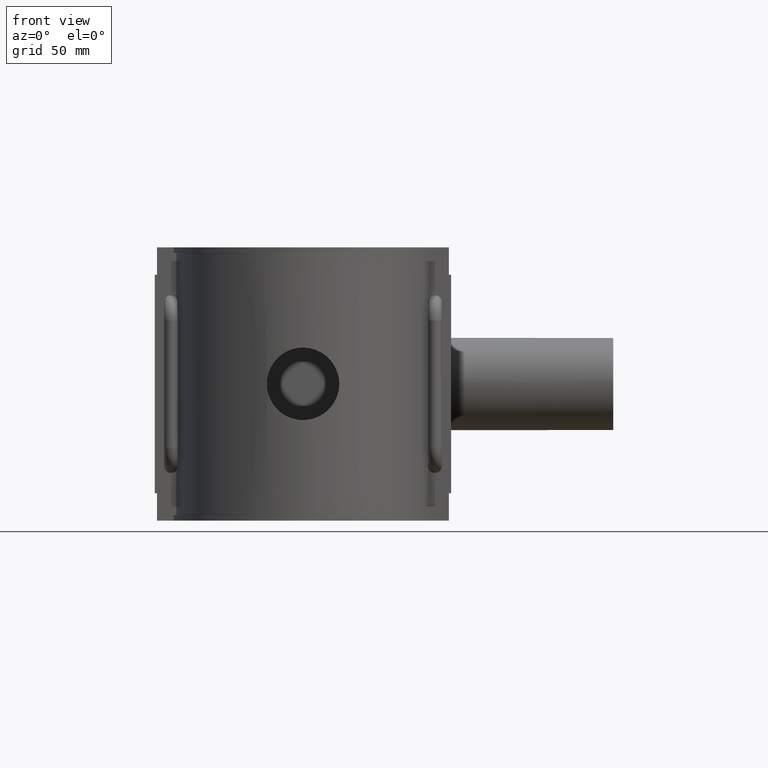
[diagram: clean part render]
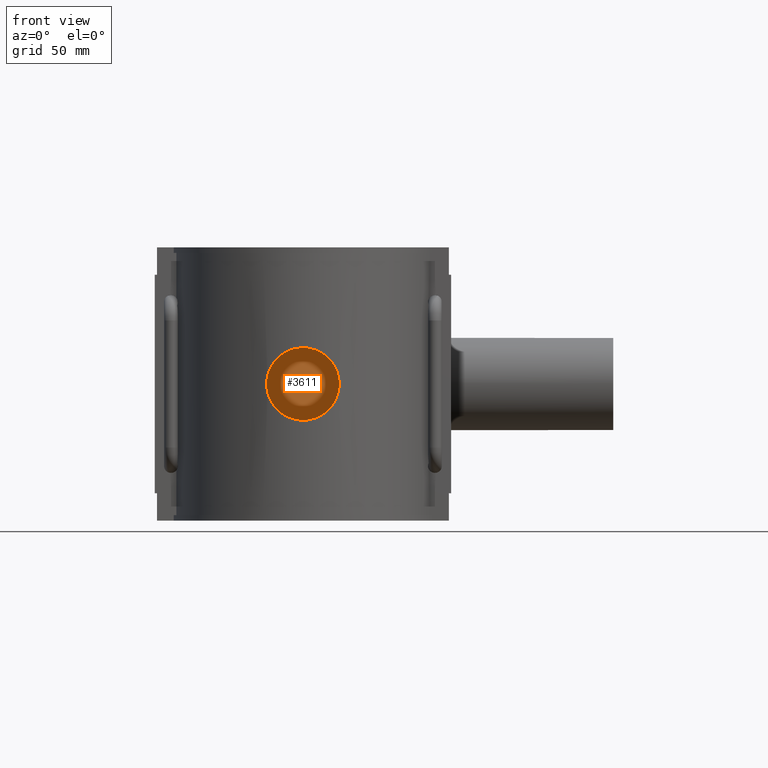
[diagram: same view with one face highlighted and labeled with its STEP entity id]
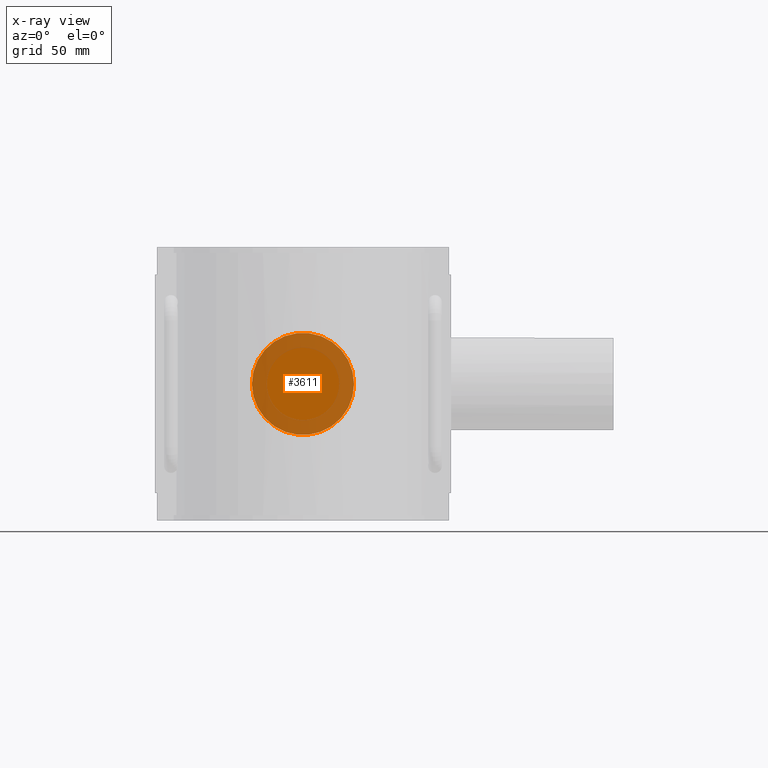
[diagram: x-ray of the same camera — body ghosted, the highlighted face saturated]
A machine part, front view. The second image highlights one B-rep face of the part: STEP entity #3611.
The next image is the same camera in x-ray: the body ghosted, the highlighted face saturated — about 49% of this face is hidden behind the body in this view.
In plain terms, the highlighted planar face has unit normal (0, -1, -0).
Its self-contained STEP definition (entity closure, byte-faithful):
#657=PLANE('',#3838);
#782=CIRCLE('',#3837,22.05);
#957=FACE_OUTER_BOUND('',#1183,.T.);
#1183=EDGE_LOOP('',(#2464));
#1572=VERTEX_POINT('',#5243);
#1926=EDGE_CURVE('',#1572,#1572,#782,.T.);
#2464=ORIENTED_EDGE('',*,*,#1926,.F.);
#3611=ADVANCED_FACE('',(#957),#657,.T.);
#3837=AXIS2_PLACEMENT_3D('',#5244,#4166,#4167);
#3838=AXIS2_PLACEMENT_3D('',#5245,#4168,#4169);
#4166=DIRECTION('center_axis',(0.,1.,3.06161699786838E-16));
#4167=DIRECTION('ref_axis',(1.,0.,0.));
#4168=DIRECTION('center_axis',(0.,-1.,-3.06161699786838E-16));
#4169=DIRECTION('ref_axis',(0.,0.,-1.));
#5243=CARTESIAN_POINT('',(-22.05,130.5,2.88771715238946E-14));
#5244=CARTESIAN_POINT('Origin',(0.,130.5,2.61768253317747E-14));
#5245=CARTESIAN_POINT('Origin',(0.,130.5,22.05));